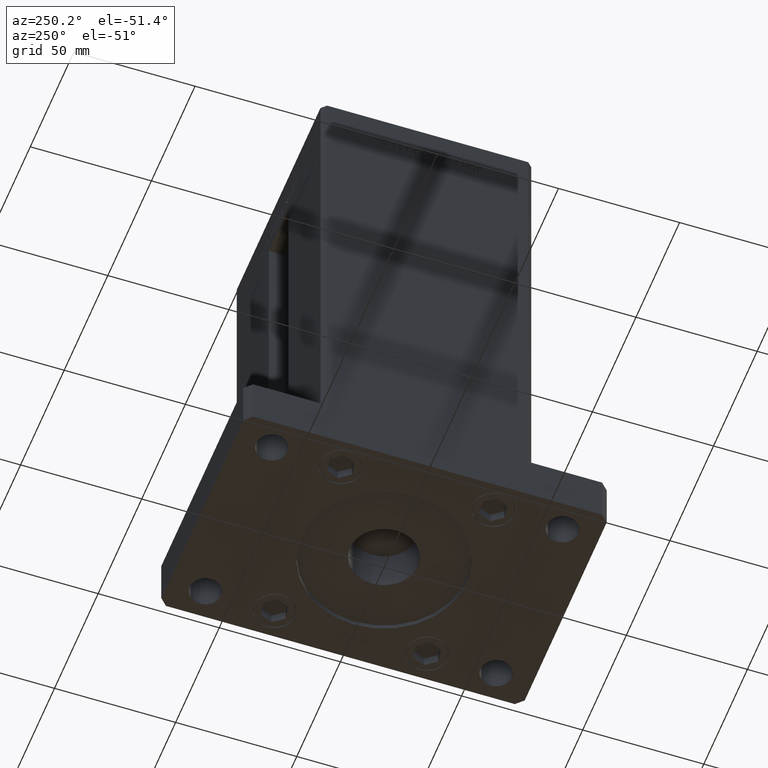
[diagram: clean part render]
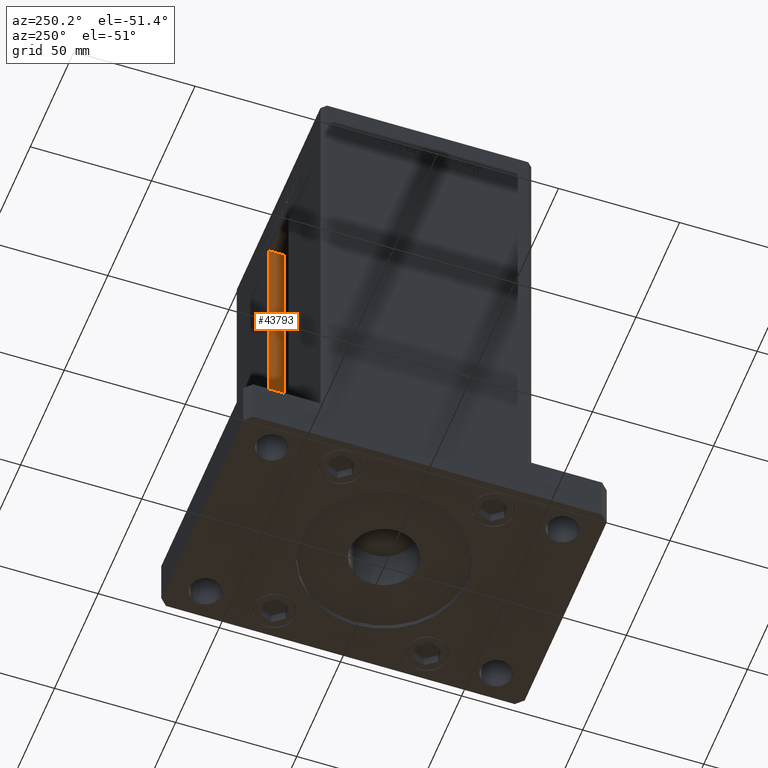
[diagram: same view with one face highlighted and labeled with its STEP entity id]
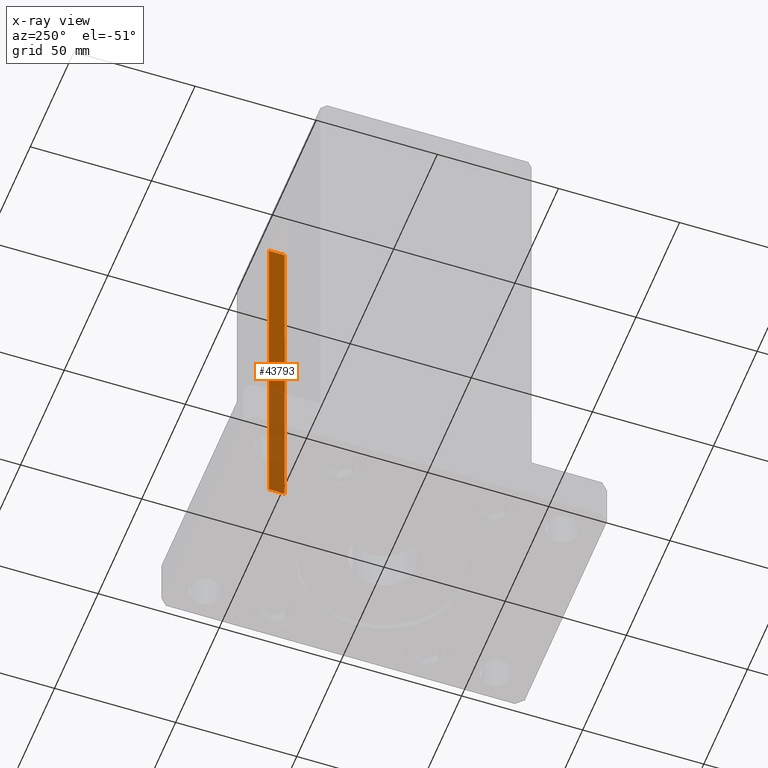
[diagram: x-ray of the same camera — body ghosted, the highlighted face saturated]
A machine part, auxiliary view. The second image highlights one B-rep face of the part: STEP entity #43793.
The next image is the same camera in x-ray: the body ghosted, the highlighted face saturated — about 42% of this face is hidden behind the body in this view.
In plain terms, the highlighted planar face has unit normal (1, 0, 0).
Its self-contained STEP definition (entity closure, byte-faithful):
#2393 = VECTOR ( 'NONE', #52665, 1000.000000000000000 ) ;
#3332 = LINE ( 'NONE', #19886, #19645 ) ;
#5766 = ORIENTED_EDGE ( 'NONE', *, *, #53287, .F. ) ;
#6053 = EDGE_CURVE ( 'NONE', #46600, #24698, #32529, .T. ) ;
#9560 = CARTESIAN_POINT ( 'NONE',  ( 11.24999999999999822, 43.50000000000000000, 0.000000000000000000 ) ) ;
#10916 = AXIS2_PLACEMENT_3D ( 'NONE', #16646, #48706, #40567 ) ;
#12240 = VECTOR ( 'NONE', #32001, 1000.000000000000000 ) ;
#15429 = DIRECTION ( 'NONE',  ( 0.000000000000000000, 1.000000000000000000, 0.000000000000000000 ) ) ;
#16363 = VERTEX_POINT ( 'NONE', #28639 ) ;
#16646 = CARTESIAN_POINT ( 'NONE',  ( 11.24999999999999822, 36.99999999999999289, 0.000000000000000000 ) ) ;
#17380 = ORIENTED_EDGE ( 'NONE', *, *, #6053, .F. ) ;
#18697 = LINE ( 'NONE', #31716, #50887 ) ;
#19645 = VECTOR ( 'NONE', #36447, 1000.000000000000000 ) ;
#19886 = CARTESIAN_POINT ( 'NONE',  ( 11.24999999999999822, 36.99999999999999289, 0.000000000000000000 ) ) ;
#22354 = CARTESIAN_POINT ( 'NONE',  ( 11.24999999999999822, 43.50000000000000000, 0.000000000000000000 ) ) ;
#23444 = CARTESIAN_POINT ( 'NONE',  ( 11.24999999999999112, 43.50000000000000000, 148.5000000000000000 ) ) ;
#24698 = VERTEX_POINT ( 'NONE', #52286 ) ;
#28639 = CARTESIAN_POINT ( 'NONE',  ( 11.24999999999999822, 36.99999999999999289, 0.000000000000000000 ) ) ;
#28656 = ORIENTED_EDGE ( 'NONE', *, *, #46781, .F. ) ;
#29589 = VERTEX_POINT ( 'NONE', #9560 ) ;
#31716 = CARTESIAN_POINT ( 'NONE',  ( 11.24999999999999822, 36.99999999999999289, 0.000000000000000000 ) ) ;
#32001 = DIRECTION ( 'NONE',  ( -0.000000000000000000, -1.000000000000000000, 0.000000000000000000 ) ) ;
#32529 = LINE ( 'NONE', #48837, #12240 ) ;
#36223 = PLANE ( 'NONE',  #10916 ) ;
#36447 = DIRECTION ( 'NONE',  ( -0.000000000000000000, -0.000000000000000000, 1.000000000000000000 ) ) ;
#40567 = DIRECTION ( 'NONE',  ( 0.000000000000000000, 0.000000000000000000, -1.000000000000000000 ) ) ;
#41085 = FACE_OUTER_BOUND ( 'NONE', #48791, .T. ) ;
#43793 = ADVANCED_FACE ( 'NONE', ( #41085 ), #36223, .F. ) ;
#44783 = LINE ( 'NONE', #22354, #2393 ) ;
#46600 = VERTEX_POINT ( 'NONE', #23444 ) ;
#46781 = EDGE_CURVE ( 'NONE', #16363, #29589, #18697, .T. ) ;
#48706 = DIRECTION ( 'NONE',  ( 1.000000000000000000, -0.000000000000000000, 0.000000000000000000 ) ) ;
#48791 = EDGE_LOOP ( 'NONE', ( #5766, #28656, #51884, #17380 ) ) ;
#48837 = CARTESIAN_POINT ( 'NONE',  ( 11.24999999999999822, 0.000000000000000000, 148.5000000000000000 ) ) ;
#50473 = EDGE_CURVE ( 'NONE', #16363, #24698, #3332, .T. ) ;
#50887 = VECTOR ( 'NONE', #15429, 1000.000000000000000 ) ;
#51884 = ORIENTED_EDGE ( 'NONE', *, *, #50473, .T. ) ;
#52286 = CARTESIAN_POINT ( 'NONE',  ( 11.24999999999999822, 36.99999999999999289, 148.5000000000000000 ) ) ;
#52665 = DIRECTION ( 'NONE',  ( -0.000000000000000000, -0.000000000000000000, 1.000000000000000000 ) ) ;
#53287 = EDGE_CURVE ( 'NONE', #29589, #46600, #44783, .T. ) ;